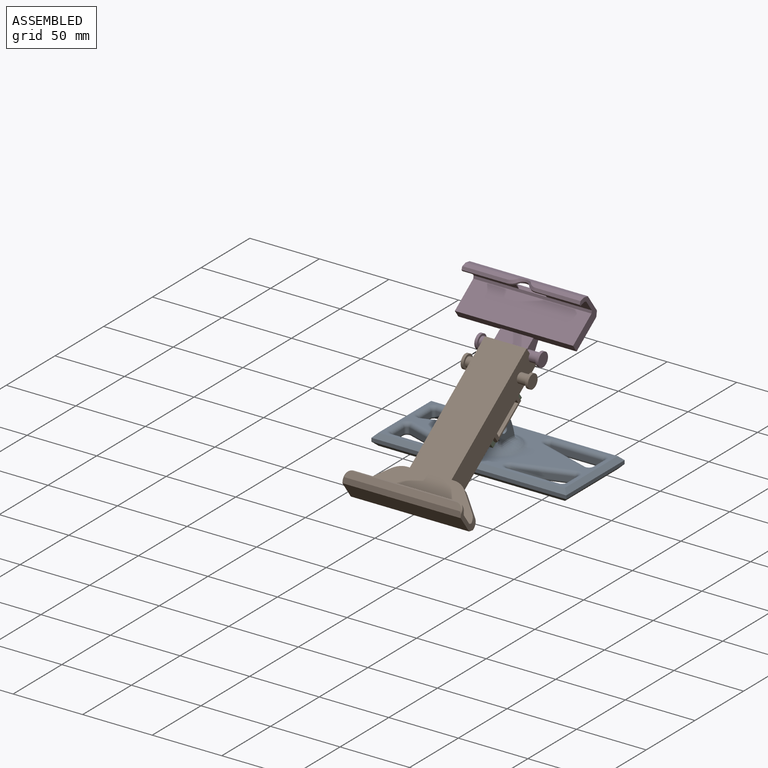
[diagram: assembled view]
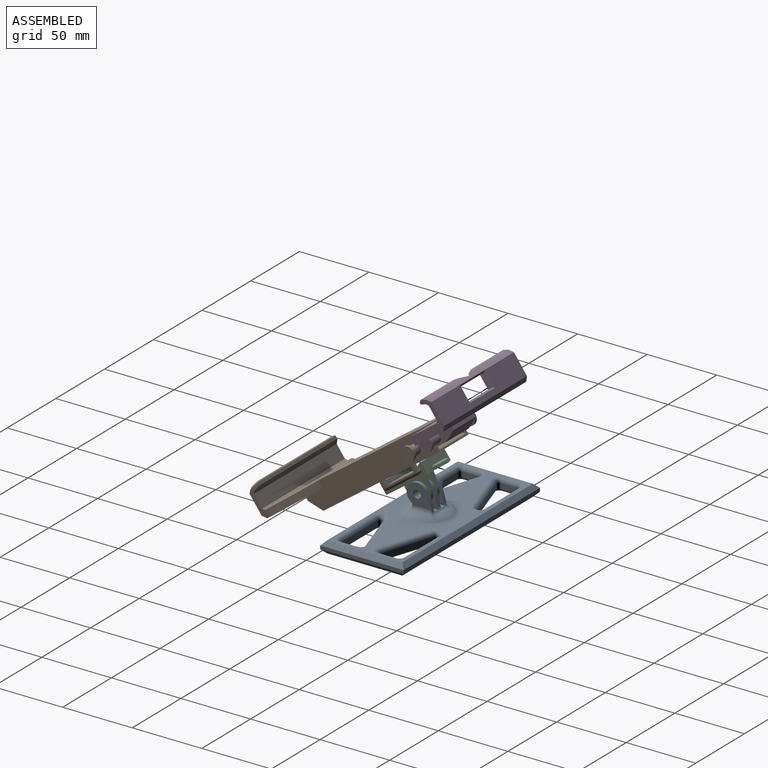
[diagram: assembled view, second angle]
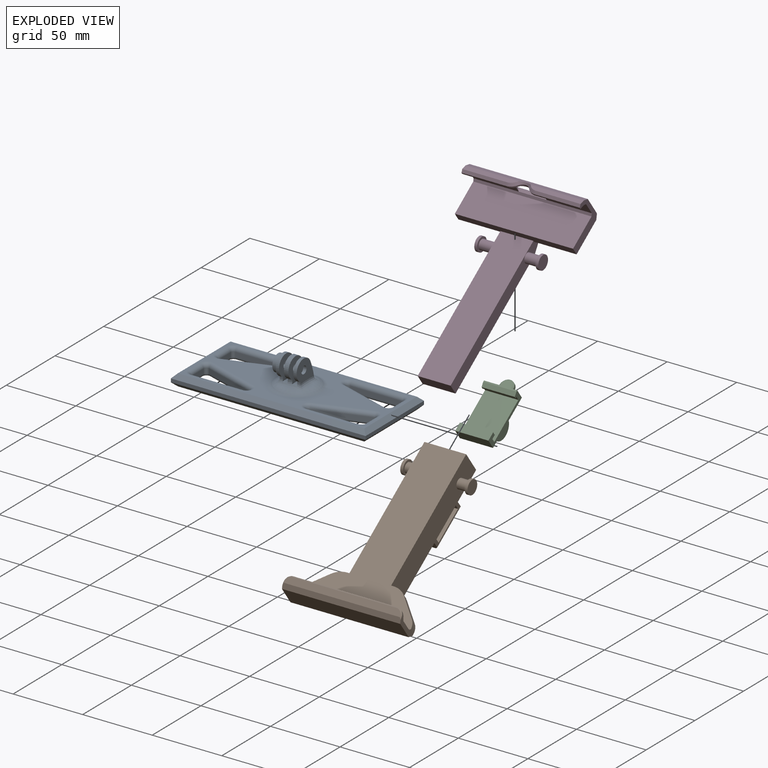
[diagram: exploded view]
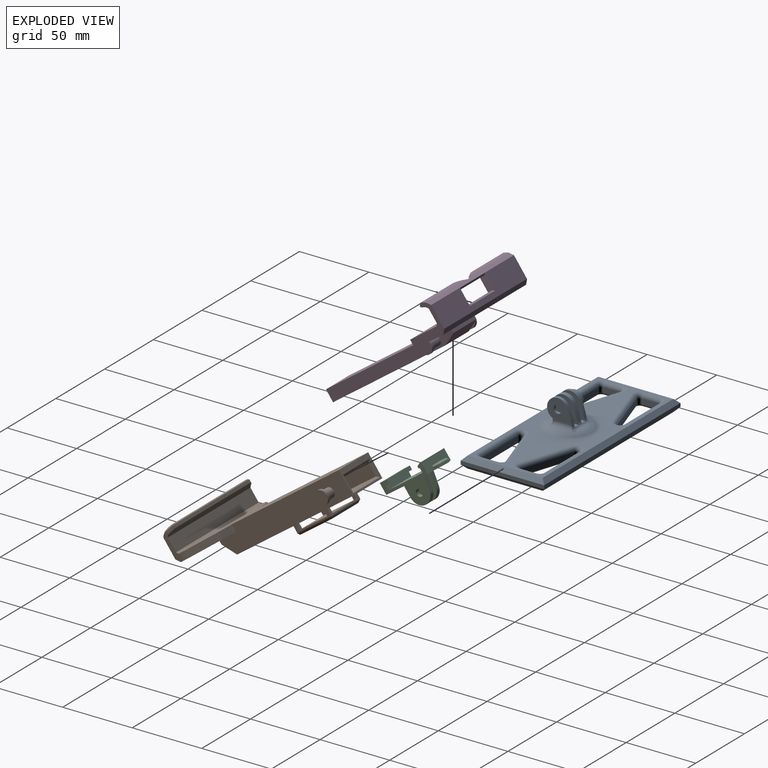
[diagram: exploded view, second angle]
ASSEMBLY  parts=4 mates=2
PART A: 121 faces, bbox 140.1x60.1x29.4 mm
  f0: plane 134x54mm, normal (0,0,1), area 3205.4mm2, adj f40,f65,f66,f67,f68,f69,f70,f71
  f1: plane 134x54mm, normal (0,0,-1), area 4692.8mm2, adj f89,f90,f91,f92,f93,f94,f95,f96
  f2: plane 3.3x0.83mm, normal (0,-1,0), area 2.7mm2, adj f9,f31,f34,f36
  f3: plane 2.35x1.38mm, normal (0,-1,0), area 2.8mm2, adj f18,f20,f33,f36
  f4: cylinder r=55mm len=11.03mm, axis (-1,0,0), area 38.3mm2, adj f9,f31,f34,f39
  f5: cylinder r=55mm len=11.45mm, axis (-1,0,0), area 28mm2, adj f18,f20,f33,f37,f39
  f6: cylinder r=2.75mm len=5.5mm, axis (-1,0,0), area 32mm2, adj f28,f30
  f7: cylinder r=55mm len=11.45mm, axis (-1,0,0), area 28mm2, adj f10,f19,f30,f38,f39
  f8: plane 2.36x1.38mm, normal (0,-1,0), area 2.8mm2, adj f10,f19,f30,f36
  f9: cylinder r=7.5mm len=14.35mm, axis (-1,0,0), area 94.6mm2, adj f2,f4,f31,f34
  f10: cylinder r=7.5mm len=14.35mm, axis (-1,0,0), area 67.4mm2, adj f7,f8,f19,f30
  f11: cylinder r=2.75mm len=5.5mm, axis (-1,0,0), area 40.6mm2, adj f18,f33
  f12: plane 12x12mm, normal (-1,0,0), area 50.5mm2, adj f21,f22,f23,f24,f25,f26,f27
  f13: torus R=8mm, axis (0,0,-1), area 356.7mm2, adj f36,f37,f38,f39,f40
  f14: plane 140x2.5mm, normal (0,1,0), area 350mm2, adj f15,f17,f113,f118
  f15: plane 60x2.5mm, normal (-1,0,0), area 150mm2, adj f14,f16,f114,f120
  f16: plane 140x2.5mm, normal (0,-1,0), area 350mm2, adj f15,f17,f116,f119
  f17: plane 60x2.5mm, normal (1,0,0), area 150mm2, adj f14,f16,f115,f117
  f18: plane 17.9x15.56mm, normal (1,0,0), area 182mm2, adj f3,f5,f11,f20,f37
  f19: plane 17.9x15.56mm, normal (-1,0,0), area 92.6mm2, adj f7,f8,f10,f21,f38
  f20: cylinder r=7.5mm len=14.35mm, axis (-1,0,0), area 67.4mm2, adj f3,f5,f18,f33
  f21: cylinder r=6mm len=12mm, axis (1,0,0), area 131.9mm2, adj f12,f19
  f22: plane 4.25x4mm, normal (0,0.5,-0.87), area 19.6mm2, adj f12,f23,f27,f28
  f23: plane 4.25x4mm, normal (0,-0.5,-0.87), area 19.6mm2, adj f12,f22,f24,f28
  f24: plane 4.91x4mm, normal (0,-1,0), area 19.6mm2, adj f12,f23,f25,f28
  f25: plane 4.25x4mm, normal (0,-0.5,0.87), area 19.6mm2, adj f12,f24,f26,f28
  f26: plane 4.25x4mm, normal (0,0.5,0.87), area 19.6mm2, adj f12,f25,f27,f28
  f27: plane 4.91x4mm, normal (0,1,0), area 19.6mm2, adj f12,f22,f26,f28
  f28: plane 9.82x8.5mm, normal (-1,0,0), area 38.8mm2, adj f6,f22,f23,f24,f25,f26,f27
  f29: plane 15.13x3.58mm, normal (0,0,1), area 52.4mm2, adj f30,f31,f36,f39
  f30: plane 18.52x16.84mm, normal (1,0,0), area 205.5mm2, adj f6,f7,f8,f10,f29,f36,f39
  f31: plane 18.63x16.86mm, normal (-1,0,0), area 205.6mm2, adj f2,f4,f9,f29,f35,f36,f39
  f32: plane 15.13x3.57mm, normal (0,0,1), area 52.4mm2, adj f33,f34,f36,f39
  f33: plane 18.53x16.85mm, normal (-1,0,0), area 205.5mm2, adj f3,f5,f11,f20,f32,f36,f39
  f34: plane 18.62x16.86mm, normal (1,0,0), area 205.6mm2, adj f2,f4,f9,f32,f35,f36,f39
  f35: cylinder r=2.75mm len=5.5mm, axis (-1,0,0), area 57mm2, adj f31,f34
  f36: bspline ~24.05x4.69mm, area 58.3mm2, adj f2,f3,f8,f13,f29,f30,f31,f32
  f37: bspline ~24.5x4.67mm, area 64.2mm2, adj f5,f13,f18,f36,f39
  f38: bspline ~23.5x4.66mm, area 64.2mm2, adj f7,f13,f19,f36,f39
  f39: bspline ~23.83x3.91mm, area 54.3mm2, adj f4,f5,f7,f13,f29,f30,f31,f32
  f40: torus R=18mm, axis (0,0,1), area 332.5mm2, adj f0,f13
  f41: plane 37.45x12.24mm, normal (0.31,0.95,0), area 137.9mm2, adj f42,f46,f88,f110
  f42: cylinder r=2mm len=3.9mm, axis (0,0,-1), area 19.8mm2, adj f41,f43,f87,f112
  f43: plane 37.45x3.5mm, normal (0,-1,0), area 131.1mm2, adj f42,f44,f85,f111
  f44: cylinder r=2mm len=3.5mm, axis (0,0,-1), area 11mm2, adj f43,f45,f83,f109
  f45: plane 12.24x3.5mm, normal (-1,0,0), area 42.8mm2, adj f44,f46,f84,f107
  f46: cylinder r=2mm len=3.5mm, axis (0,0,-1), area 13.2mm2, adj f41,f45,f86,f108
  f47: plane 37.45x12.24mm, normal (-0.31,0.95,0), area 137.9mm2, adj f48,f52,f82,f103
  f48: cylinder r=2mm len=3.5mm, axis (0,0,-1), area 13.2mm2, adj f47,f49,f80,f101
  f49: plane 12.24x3.5mm, normal (1,0,0), area 42.8mm2, adj f48,f50,f78,f102
  f50: cylinder r=2mm len=3.5mm, axis (0,0,-1), area 11mm2, adj f49,f51,f77,f104
  f51: plane 37.45x3.5mm, normal (0,-1,0), area 131.1mm2, adj f50,f52,f79,f106
  f52: cylinder r=2mm len=3.9mm, axis (0,0,-1), area 19.8mm2, adj f47,f51,f81,f105
  f53: plane 12.24x3.5mm, normal (1,0,0), area 42.8mm2, adj f54,f58,f76,f98
  f54: cylinder r=2mm len=3.5mm, axis (0,0,-1), area 13.2mm2, adj f53,f55,f75,f100
  f55: plane 37.45x12.24mm, normal (-0.31,-0.95,0), area 137.9mm2, adj f54,f56,f73,f99
  f56: cylinder r=2mm len=3.9mm, axis (0,0,-1), area 19.8mm2, adj f55,f57,f71,f97
  f57: plane 37.45x3.5mm, normal (0,1,0), area 131.1mm2, adj f56,f58,f72,f95
  f58: cylinder r=2mm len=3.5mm, axis (0,0,-1), area 11mm2, adj f53,f57,f74,f96
  f59: plane 12.24x3.5mm, normal (-1,0,0), area 42.8mm2, adj f60,f64,f70,f92
  f60: cylinder r=2mm len=3.5mm, axis (0,0,-1), area 11mm2, adj f59,f61,f68,f94
  f61: plane 37.45x3.5mm, normal (0,1,0), area 131.1mm2, adj f60,f62,f66,f93
  f62: cylinder r=2mm len=3.9mm, axis (0,0,-1), area 19.8mm2, adj f61,f63,f65,f91
  f63: plane 37.45x12.24mm, normal (0.31,-0.95,0), area 137.9mm2, adj f62,f64,f67,f89
  f64: cylinder r=2mm len=3.5mm, axis (0,0,-1), area 13.2mm2, adj f59,f63,f69,f90
  f65: torus R=5mm, axis (0,0,1), area 41.1mm2, adj f0,f62,f66,f67
  f66: cylinder r=3mm len=37.45mm, axis (-1,0,0), area 176.5mm2, adj f0,f61,f65,f68
  f67: cylinder r=3mm len=38.38mm, axis (0.95,0.31,0), area 185.7mm2, adj f0,f63,f65,f69
  f68: torus R=5mm, axis (0,0,1), area 22.9mm2, adj f0,f60,f66,f70
  f69: torus R=5mm, axis (0,0,1), area 27.5mm2, adj f0,f64,f67,f70
  f70: cylinder r=3mm len=12.24mm, axis (0,-1,0), area 57.7mm2, adj f0,f59,f68,f69
  f71: torus R=5mm, axis (0,0,1), area 41.1mm2, adj f0,f56,f72,f73
  f72: cylinder r=3mm len=37.45mm, axis (-1,0,0), area 176.5mm2, adj f0,f57,f71,f74
  f73: cylinder r=3mm len=38.38mm, axis (0.95,-0.31,0), area 185.7mm2, adj f0,f55,f71,f75
  f74: torus R=5mm, axis (0,0,1), area 22.9mm2, adj f0,f58,f72,f76
  f75: torus R=5mm, axis (0,0,1), area 27.5mm2, adj f0,f54,f73,f76
  f76: cylinder r=3mm len=12.24mm, axis (0,1,0), area 57.7mm2, adj f0,f53,f74,f75
  f77: torus R=5mm, axis (0,0,1), area 22.9mm2, adj f0,f50,f78,f79
  f78: cylinder r=3mm len=12.24mm, axis (0,1,0), area 57.7mm2, adj f0,f49,f77,f80
  f79: cylinder r=3mm len=37.45mm, axis (1,0,0), area 176.5mm2, adj f0,f51,f77,f81
  f80: torus R=5mm, axis (0,0,1), area 27.5mm2, adj f0,f48,f78,f82
  f81: torus R=5mm, axis (0,0,1), area 41.1mm2, adj f0,f52,f79,f82
  f82: cylinder r=3mm len=38.38mm, axis (-0.95,-0.31,0), area 185.7mm2, adj f0,f47,f80,f81
  f83: torus R=5mm, axis (0,0,1), area 22.9mm2, adj f0,f44,f84,f85
  f84: cylinder r=3mm len=12.24mm, axis (0,-1,0), area 57.7mm2, adj f0,f45,f83,f86
  f85: cylinder r=3mm len=37.45mm, axis (1,0,0), area 176.5mm2, adj f0,f43,f83,f87
  f86: torus R=5mm, axis (0,0,1), area 27.5mm2, adj f0,f46,f84,f88
  f87: torus R=5mm, axis (0,0,1), area 41.1mm2, adj f0,f42,f85,f88
  f88: cylinder r=3mm len=38.38mm, axis (-0.95,0.31,0), area 185.7mm2, adj f0,f41,f86,f87
  f89: cylinder r=2mm len=38.07mm, axis (0.95,0.31,0), area 123.8mm2, adj f1,f63,f90,f91
  f90: torus R=4mm, axis (0,0,1), area 16.2mm2, adj f1,f64,f89,f92
  f91: torus R=4mm, axis (0,0,1), area 24.2mm2, adj f1,f62,f89,f93
  f92: cylinder r=2mm len=12.24mm, axis (0,-1,0), area 38.5mm2, adj f1,f59,f90,f94
  f93: cylinder r=2mm len=37.45mm, axis (-1,0,0), area 117.6mm2, adj f1,f61,f91,f94
  f94: torus R=4mm, axis (0,0,1), area 13.5mm2, adj f1,f60,f92,f93
  f95: cylinder r=2mm len=37.45mm, axis (-1,0,0), area 117.6mm2, adj f1,f57,f96,f97
  f96: torus R=4mm, axis (0,0,1), area 13.5mm2, adj f1,f58,f95,f98
  f97: torus R=4mm, axis (0,0,1), area 24.2mm2, adj f1,f56,f95,f99
  f98: cylinder r=2mm len=12.24mm, axis (0,1,0), area 38.5mm2, adj f1,f53,f96,f100
  f99: cylinder r=2mm len=38.07mm, axis (0.95,-0.31,0), area 123.8mm2, adj f1,f55,f97,f100
  f100: torus R=4mm, axis (0,0,1), area 16.2mm2, adj f1,f54,f98,f99
  f101: torus R=4mm, axis (0,0,1), area 16.2mm2, adj f1,f48,f102,f103
  f102: cylinder r=2mm len=12.24mm, axis (0,1,0), area 38.5mm2, adj f1,f49,f101,f104
  f103: cylinder r=2mm len=38.07mm, axis (-0.95,-0.31,0), area 123.8mm2, adj f1,f47,f101,f105
  f104: torus R=4mm, axis (0,0,1), area 13.5mm2, adj f1,f50,f102,f106
  f105: torus R=4mm, axis (0,0,1), area 24.2mm2, adj f1,f52,f103,f106
  f106: cylinder r=2mm len=37.45mm, axis (1,0,0), area 117.6mm2, adj f1,f51,f104,f105
  f107: cylinder r=2mm len=12.24mm, axis (0,-1,0), area 38.5mm2, adj f1,f45,f108,f109
  f108: torus R=4mm, axis (0,0,1), area 16.2mm2, adj f1,f46,f107,f110
  f109: torus R=4mm, axis (0,0,1), area 13.5mm2, adj f1,f44,f107,f111
  f110: cylinder r=2mm len=38.07mm, axis (-0.95,0.31,0), area 123.8mm2, adj f1,f41,f108,f112
  f111: cylinder r=2mm len=37.45mm, axis (1,0,0), area 117.6mm2, adj f1,f43,f109,f112
  f112: torus R=4mm, axis (0,0,1), area 24.2mm2, adj f1,f42,f110,f111
  f113: plane 140x3mm, normal (0,0.71,-0.71), area 581.2mm2, adj f1,f14,f114,f115
  f114: plane 60x3mm, normal (-0.71,0,-0.71), area 241.8mm2, adj f1,f15,f113,f116
  f115: plane 60x3mm, normal (0.71,0,-0.71), area 241.8mm2, adj f1,f17,f113,f116
  f116: plane 140x3mm, normal (0,-0.71,-0.71), area 581.2mm2, adj f1,f16,f114,f115
  f117: plane 60x3mm, normal (0.71,0,0.71), area 241.8mm2, adj f0,f17,f118,f119
  f118: plane 140x3mm, normal (0,0.71,0.71), area 581.2mm2, adj f0,f14,f117,f120
  f119: plane 140x3mm, normal (0,-0.71,0.71), area 581.2mm2, adj f0,f16,f117,f120
  f120: plane 60x3mm, normal (-0.71,0,0.71), area 241.8mm2, adj f0,f15,f118,f119
PART B: 66 faces, bbox 85.6x123.6x41.6 mm
  f0: plane 30x6.5mm, normal (0,1,0), area 99.3mm2, adj f4,f6,f7,f38,f40,f42,f43,f51
  f1: plane 3.8x2.7mm, normal (0,1,0), area 10.3mm2, adj f4,f6,f40,f44
  f2: plane 3.8x2.7mm, normal (0,-1,0), area 10.3mm2, adj f4,f6,f40,f42
  f3: plane 30x17.4mm, normal (0,-1,0), area 182.2mm2, adj f4,f5,f6,f7,f47,f48,f49,f50
  f4: plane 103x30mm, normal (0,0,-1), area 3061.4mm2, adj f0,f1,f2,f3,f6,f7,f13,f37
  f5: plane 118.59x84.95mm, normal (0,0,1), area 4432.6mm2, adj f3,f6,f7,f15,f20,f21,f53,f54
  f6: plane 110x22.4mm, normal (1,0,0), area 1824.4mm2, adj f0,f1,f2,f3,f4,f5,f13,f14
  f7: plane 110x22.4mm, normal (-1,0,0), area 1824.4mm2, adj f0,f3,f4,f5,f13,f14,f15,f22
  f8: plane 88.5x9.4mm, normal (1,0,0), area 831.9mm2, adj f9,f11,f12,f48
  f9: plane 88.5x24.4mm, normal (0,0,1), area 2159.4mm2, adj f8,f10,f12,f50
  f10: plane 88.5x9.4mm, normal (-1,0,0), area 831.9mm2, adj f9,f11,f12,f49
  f11: plane 88.5x24.4mm, normal (0,0,-1), area 2159.4mm2, adj f8,f10,f12,f47
  f12: plane 24.4x9.4mm, normal (0,-1,0), area 229.4mm2, adj f8,f9,f10,f11
  f13: plane 30x9.4mm, normal (0,0.8,-0.6), area 351.6mm2, adj f4,f6,f7,f14
  f14: plane 30x3mm, normal (0,1,0), area 90mm2, adj f6,f7,f13,f22
  f15: plane 5x1.7mm, normal (0,-1,0), area 8.5mm2, adj f5,f7,f22,f55
  f16: plane 75x2.19mm, normal (0,-1,0), area 164.4mm2, adj f17,f59,f60,f63
  f17: plane 85.3x4.37mm, normal (0,-0.34,-0.94), area 328.7mm2, adj f16,f18,f59,f60
  f18: plane 85.01x1.42mm, normal (0,-0.71,-0.71), area 169.8mm2, adj f17,f19,f27,f28,f59,f60
  f19: plane 85x10mm, normal (0,-1,0), area 850mm2, adj f18,f20,f27,f28
  f20: plane 85x1.41mm, normal (0,-0.71,0.71), area 170mm2, adj f5,f19,f27,f28,f57,f58
  f21: plane 5x1.7mm, normal (0,-1,0), area 8.5mm2, adj f5,f6,f22,f56
  f22: plane 85x25mm, normal (0,0,-1), area 1267.4mm2, adj f6,f7,f14,f15,f21,f23,f27,f28
  f23: plane 85x2.83mm, normal (0,0.71,-0.71), area 340mm2, adj f22,f24,f27,f28
  f24: plane 85x14.79mm, normal (0,1,0), area 1256.9mm2, adj f23,f25,f27,f28
  f25: plane 85x2.83mm, normal (0,0.71,0.71), area 338.8mm2, adj f24,f26,f27,f28,f61,f65
  f26: plane 83.62x4.42mm, normal (0,0.34,0.94), area 383.4mm2, adj f25,f61,f62,f63,f64,f65
  f27: plane 19.82x3.69mm, normal (1,0,0), area 57.5mm2, adj f18,f19,f20,f22,f23,f24,f25,f58
  f28: plane 19.82x3.69mm, normal (-1,0,0), area 57.5mm2, adj f18,f19,f20,f22,f23,f24,f25,f57
  f29: cylinder r=3.5mm len=7mm, axis (-1,0,0), area 153.9mm2, adj f6,f32
  f30: cylinder r=5mm len=10mm, axis (-1,0,0), area 62.8mm2, adj f31,f32
  f31: plane 10x10mm, normal (1,0,0), area 78.5mm2, adj f30
  f32: plane 10x10mm, normal (-1,0,0), area 40.1mm2, adj f29,f30
  f33: cylinder r=3.5mm len=7mm, axis (1,0,0), area 153.9mm2, adj f7,f36
  f34: cylinder r=5mm len=10mm, axis (1,0,0), area 62.8mm2, adj f35,f36
  f35: plane 10x10mm, normal (-1,0,0), area 78.5mm2, adj f34
  f36: plane 10x10mm, normal (1,0,0), area 40.1mm2, adj f33,f34
  f37: plane 30x5mm, normal (0,-1,0), area 56.5mm2, adj f4,f6,f7,f40,f44,f45,f46
  f38: plane 28.3x27mm, normal (0,0,-1), area 764.1mm2, adj f0,f46,f51,f52
  f39: plane 3.8x2.7mm, normal (0,1,0), area 10.3mm2, adj f4,f7,f40,f45
  f40: plane 30x29.8mm, normal (0,0,1), area 865.4mm2, adj f0,f1,f2,f6,f7,f37,f39,f41
  f41: plane 3.8x2.7mm, normal (0,-1,0), area 10.3mm2, adj f4,f7,f40,f43
  f42: plane 3.8x2.7mm, normal (-1,0,0), area 10.3mm2, adj f0,f2,f4,f40
  f43: plane 3.8x2.7mm, normal (1,0,0), area 10.3mm2, adj f0,f4,f40,f41
  f44: plane 3.8x2.6mm, normal (-1,0,0), area 9.9mm2, adj f1,f4,f37,f40
  f45: plane 3.8x2.6mm, normal (1,0,0), area 9.9mm2, adj f4,f37,f39,f40
  f46: plane 30x1.5mm, normal (0,-0.71,-0.71), area 60.5mm2, adj f37,f38,f51,f52
  f47: plane 27.4x1.5mm, normal (0,-0.71,-0.71), area 54.9mm2, adj f3,f11,f48,f49
  f48: plane 12.4x1.5mm, normal (0.71,-0.71,0), area 23.1mm2, adj f3,f8,f47,f50
  f49: plane 12.4x1.5mm, normal (-0.71,-0.71,0), area 23.1mm2, adj f3,f10,f47,f50
  f50: plane 27.4x1.5mm, normal (0,-0.71,0.71), area 54.9mm2, adj f3,f9,f48,f49
  f51: plane 29.8x1.5mm, normal (-0.71,0,-0.71), area 61.6mm2, adj f0,f7,f38,f46
  f52: plane 29.8x1.5mm, normal (0.71,0,-0.71), area 61.6mm2, adj f0,f6,f38,f46
  f53: plane 12.97x12.97mm, normal (0.71,-0.71,0), area 91.7mm2, adj f5,f22,f56,f58
  f54: plane 12.97x12.97mm, normal (-0.71,-0.71,0), area 91.7mm2, adj f5,f22,f55,f57
  f55: cylinder r=14mm len=9.9mm, axis (0,0,-1), area 55mm2, adj f5,f15,f22,f54
  f56: cylinder r=14mm len=9.9mm, axis (0,0,-1), area 55mm2, adj f5,f21,f22,f53
  f57: cylinder r=10mm len=7.07mm, axis (0,0,-1), area 39.5mm2, adj f5,f20,f22,f28,f54
  f58: cylinder r=10mm len=7.07mm, axis (0,0,1), area 39.5mm2, adj f5,f20,f22,f27,f53
  f59: cylinder r=5mm len=5mm, axis (0,0,-1), area 18.1mm2, adj f16,f17,f18,f28,f64
  f60: cylinder r=5mm len=5mm, axis (0,0,1), area 18.1mm2, adj f16,f17,f18,f27,f62
  f61: plane 1.52x1.21mm, normal (0.71,0.24,0.66), area 0.9mm2, adj f25,f26,f27,f62
  f62: bspline ~5.24x5.01mm, area 8.2mm2, adj f26,f60,f61,f63
  f63: plane 75x0.94mm, normal (0,-0.57,0.82), area 86mm2, adj f16,f26,f62,f64
  f64: bspline ~5.24x5.01mm, area 8.2mm2, adj f26,f59,f63,f65
  f65: plane 1.52x1.21mm, normal (-0.71,0.24,0.66), area 0.9mm2, adj f25,f26,f28,f64
PART C: 34 faces, bbox 44.5x23.9x24.1 mm
  f0: plane 23.9x8.1mm, normal (1,0,0), area 164.6mm2, adj f5,f14,f17,f18,f28,f29,f30,f31
  f1: plane 8x3mm, normal (-1,0,0), area 24mm2, adj f2,f5,f24,f25
  f2: cylinder r=8mm len=15.81mm, axis (0,1,0), area 70.1mm2, adj f1,f3,f24,f25
  f3: plane 9.76x3mm, normal (0.98,0,-0.22), area 30mm2, adj f2,f5,f24,f25
  f4: cylinder r=2.5mm len=5mm, axis (0,1,0), area 47.1mm2, adj f24,f25
  f5: plane 44.5x23.9mm, normal (0,0,-1), area 833.6mm2, adj f0,f1,f3,f13,f17,f18,f19,f21
  f6: plane 23.9x1mm, normal (0,0,-1), area 23.9mm2, adj f7,f16,f17,f18
  f7: plane 23.9x3.3mm, normal (-1,0,0), area 78.9mm2, adj f6,f8,f17,f18
  f8: plane 30.5x23.9mm, normal (0,0,1), area 728.9mm2, adj f7,f9,f17,f18
  f9: plane 23.9x3.3mm, normal (1,0,0), area 78.9mm2, adj f8,f10,f17,f18
  f10: plane 23.9x3mm, normal (0,0,-1), area 71.7mm2, adj f9,f11,f17,f18
  f11: plane 23.9x2.8mm, normal (1,0,0), area 66.9mm2, adj f10,f12,f17,f18
  f12: plane 23.9x6mm, normal (0,0,1), area 143.4mm2, adj f11,f13,f17,f18
  f13: plane 23.9x8.1mm, normal (-1,0,0), area 193.6mm2, adj f5,f12,f17,f18
  f14: plane 23.9x1mm, normal (0,0,1), area 23.9mm2, adj f0,f15,f17,f18
  f15: plane 23.9x3mm, normal (-0.4,0,0.92), area 78.1mm2, adj f14,f16,f17,f18
  f16: plane 23.9x1.5mm, normal (-1,0,0), area 35.9mm2, adj f6,f15,f17,f18
  f17: plane 36.5x8.1mm, normal (0,-1,0), area 118.8mm2, adj f0,f5,f6,f7,f8,f9,f10,f11
  f18: plane 36.5x8.1mm, normal (0,1,0), area 118.8mm2, adj f0,f5,f6,f7,f8,f9,f10,f11
  f19: plane 8x3mm, normal (-1,0,0), area 24mm2, adj f5,f20,f23,f26
  f20: cylinder r=8mm len=15.81mm, axis (0,1,0), area 70.1mm2, adj f19,f21,f23,f26
  f21: plane 9.76x3mm, normal (0.98,0,-0.22), area 30mm2, adj f5,f20,f23,f26
  f22: cylinder r=2.5mm len=5mm, axis (0,1,0), area 47.1mm2, adj f23,f26
  f23: plane 18x16mm, normal (0,-1,0), area 217.8mm2, adj f5,f19,f20,f21,f22
  f24: plane 18x16mm, normal (0,1,0), area 217.8mm2, adj f1,f2,f3,f4,f5
  f25: plane 18x16mm, normal (0,-1,0), area 217.8mm2, adj f1,f2,f3,f4,f5
  f26: plane 18x16mm, normal (0,1,0), area 217.8mm2, adj f5,f19,f20,f21,f22
  f27: cylinder r=5mm len=10mm, axis (0,0,-1), area 31.4mm2, adj f5,f28,f29,f32
  f28: plane 3x2mm, normal (0,-1,0), area 6mm2, adj f0,f5,f27,f31
  f29: plane 3x2mm, normal (0,1,0), area 6mm2, adj f0,f5,f27,f33
  f30: plane 8x7mm, normal (0,0,1), area 49.1mm2, adj f0,f31,f32,f33
  f31: plane 3x1mm, normal (0,-0.71,0.71), area 4.2mm2, adj f0,f28,f30,f32
  f32: cone r=5mm half-angle=45deg, axis (0,0,-1), area 20mm2, adj f27,f30,f31,f33
  f33: plane 3x1mm, normal (0,0.71,0.71), area 4.2mm2, adj f0,f29,f30,f32
PART D: 47 faces, bbox 133.4x85.5x31.1 mm
  f0: plane 38.37x3.5mm, normal (0.34,0,0.94), area 134.3mm2, adj f16,f23,f44,f45,f46
  f1: plane 32.5x10mm, normal (-1,0,0), area 325mm2, adj f19,f21,f24,f36
  f2: plane 32.25x1.19mm, normal (-1,0,0), area 38.5mm2, adj f4,f24,f40,f42
  f3: plane 32.25x1.19mm, normal (-1,0,0), area 38.5mm2, adj f18,f23,f41,f46
  f4: plane 39.73x4.29mm, normal (-0.34,0,-0.94), area 148.2mm2, adj f2,f19,f24,f25,f40
  f5: plane 23.7x8.7mm, normal (-1,0,0), area 206.2mm2, adj f6,f9,f10,f11
  f6: plane 100x23.7mm, normal (0,0,-1), area 2370mm2, adj f5,f7,f10,f11
  f7: plane 23.7x10mm, normal (0.4,0,-0.92), area 258.5mm2, adj f6,f8,f10,f11
  f8: plane 23.7x3.35mm, normal (1,0,0), area 79.4mm2, adj f7,f10,f11,f13
  f9: plane 105x23.7mm, normal (0,0,1), area 2488.5mm2, adj f5,f10,f11,f12
  f10: plane 110x8.7mm, normal (0,-1,0), area 891.8mm2, adj f5,f6,f7,f8,f9,f12,f13,f27
  f11: plane 110x8.7mm, normal (0,1,0), area 891.8mm2, adj f5,f6,f7,f8,f9,f12,f13,f26
  f12: plane 85x6.2mm, normal (-1,0,0), area 503.3mm2, adj f9,f10,f11,f13,f22,f23,f24
  f13: plane 85x25mm, normal (0,0,-1), area 2006.5mm2, adj f8,f10,f11,f12,f14,f23,f24
  f14: plane 85x2.83mm, normal (0.71,0,-0.71), area 340mm2, adj f13,f15,f23,f24
  f15: plane 85x15.99mm, normal (1,0,0), area 1046.9mm2, adj f14,f16,f23,f24,f36,f37,f38,f39
  f16: plane 85x2.83mm, normal (0.71,0,0.71), area 332.4mm2, adj f0,f15,f17,f23,f24,f44
  f17: plane 38.37x3.5mm, normal (0.34,0,0.94), area 134.3mm2, adj f16,f24,f42,f43,f44
  f18: plane 39.73x4.29mm, normal (-0.34,0,-0.94), area 148.2mm2, adj f3,f19,f23,f25,f41
  f19: plane 85x1.41mm, normal (-0.71,0,-0.71), area 162.1mm2, adj f1,f4,f18,f20,f23,f24,f25,f35
  f20: plane 32.5x10mm, normal (-1,0,0), area 325mm2, adj f19,f21,f23,f37
  f21: plane 85x1.41mm, normal (-0.71,0,0.71), area 170mm2, adj f1,f20,f22,f23,f24,f34
  f22: plane 85x23.41mm, normal (0,0,1), area 1990.2mm2, adj f12,f21,f23,f24
  f23: plane 27.83x22.91mm, normal (0,-1,0), area 227.1mm2, adj f0,f3,f12,f13,f14,f15,f16,f18
  f24: plane 27.83x22.91mm, normal (0,1,0), area 227.1mm2, adj f1,f2,f4,f12,f13,f14,f15,f16
  f25: cylinder r=5mm len=7.88mm, axis (0,0,-1), area 15.2mm2, adj f4,f18,f19,f40,f41,f44
  f26: cylinder r=3.5mm len=9.15mm, axis (0,1,0), area 201.2mm2, adj f11,f30
  f27: cylinder r=3.5mm len=9.15mm, axis (0,1,0), area 201.2mm2, adj f10,f33
  f28: cylinder r=5mm len=10mm, axis (0,-1,0), area 62.8mm2, adj f29,f30
  f29: plane 10x10mm, normal (0,1,0), area 78.5mm2, adj f28
  f30: plane 10x10mm, normal (0,-1,0), area 40.1mm2, adj f26,f28
  f31: cylinder r=5mm len=10mm, axis (0,1,0), area 62.8mm2, adj f32,f33
  f32: plane 10x10mm, normal (0,-1,0), area 78.5mm2, adj f31
  f33: plane 10x10mm, normal (0,1,0), area 40.1mm2, adj f27,f31
  f34: plane 24x2mm, normal (0,0,1), area 44mm2, adj f21,f36,f37,f38
  f35: plane 24x2mm, normal (0,0,-1), area 44mm2, adj f19,f36,f37,f39
  f36: plane 12x3mm, normal (0.71,-0.71,0), area 43.8mm2, adj f1,f15,f34,f35,f38,f39
  f37: plane 12x3mm, normal (0.71,0.71,0), area 43.8mm2, adj f15,f20,f34,f35,f38,f39
  f38: plane 26x1mm, normal (0.71,0,0.71), area 35.4mm2, adj f15,f34,f36,f37
  f39: plane 26x1mm, normal (0.71,0,-0.71), area 35.4mm2, adj f15,f35,f36,f37
  f40: cylinder r=8mm len=6.31mm, axis (0,0,-1), area 9.4mm2, adj f2,f4,f25,f43
  f41: cylinder r=8mm len=6.31mm, axis (0,0,-1), area 9.4mm2, adj f3,f18,f25,f45
  f42: plane 32.25x1.88mm, normal (-0.57,0,0.82), area 74mm2, adj f2,f17,f24,f43
  f43: bspline ~6.31x4.43mm, area 15.1mm2, adj f17,f40,f42,f44
  f44: bspline ~10.09x3.79mm, area 19.6mm2, adj f0,f16,f17,f25,f43,f45
  f45: bspline ~6.31x4.43mm, area 15.1mm2, adj f0,f41,f44,f46
  f46: plane 32.25x1.88mm, normal (-0.57,0,0.82), area 74mm2, adj f0,f3,f23,f45
PLACE A t=(7.51,-5.71,0.02)mm fixed
PLACE B rot(axis=(0,-0.31,0.95),180deg) t=(7.91,-12.48,40.4)mm
PLACE C rot(axis=(0.29,-0.29,0.91),95.5deg) t=(7.91,-15.84,31.83)mm
PLACE D rot(axis=(0.29,-0.29,0.91),95.5deg) t=(7.92,-28.91,37.92)mm
MATE revolute C.f2 <-> A.f6  axis (1,0,0) through (12.66,-9.81,21.82)mm
MATE fastened C.f9 <-> B.f0  axis (0,0.81,0.59) through (7.91,-28.19,22.88)mm
